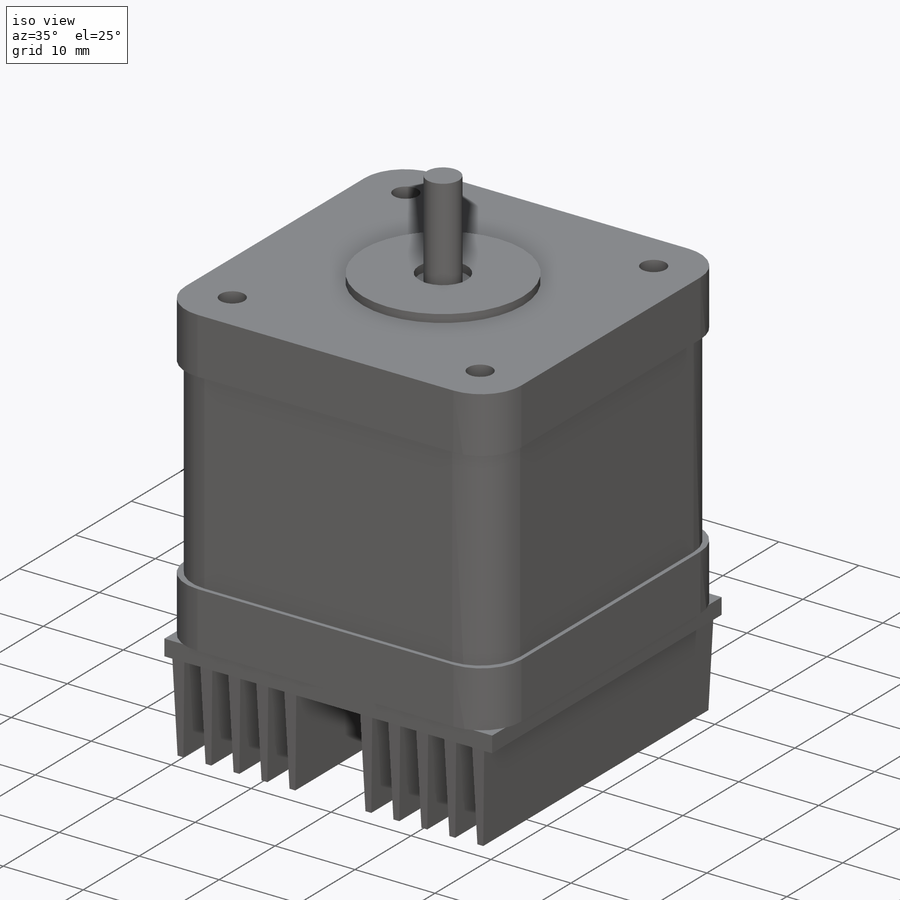
[diagram: iso view]
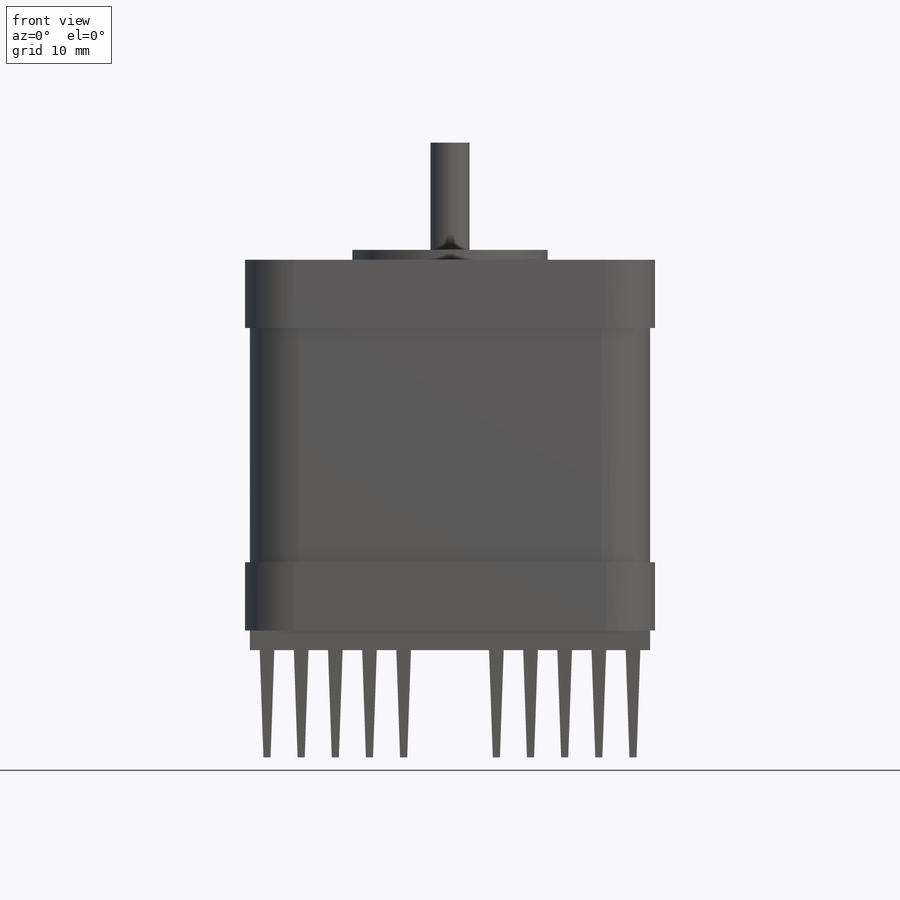
[diagram: front view]
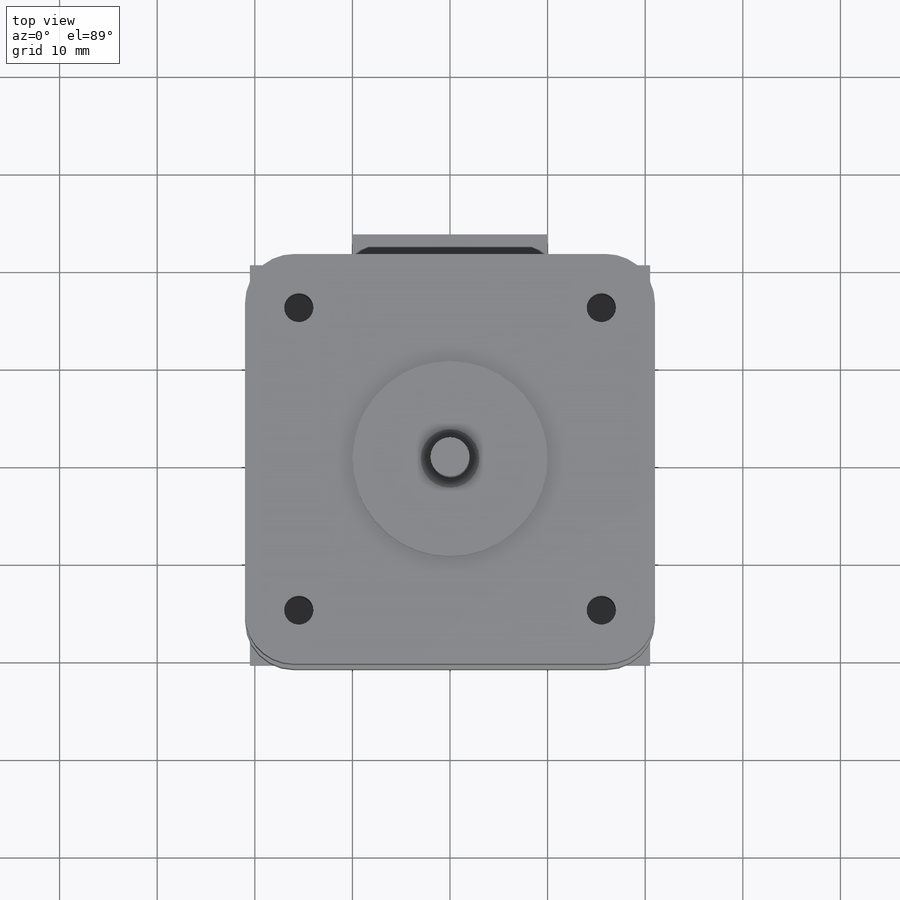
[diagram: top view]
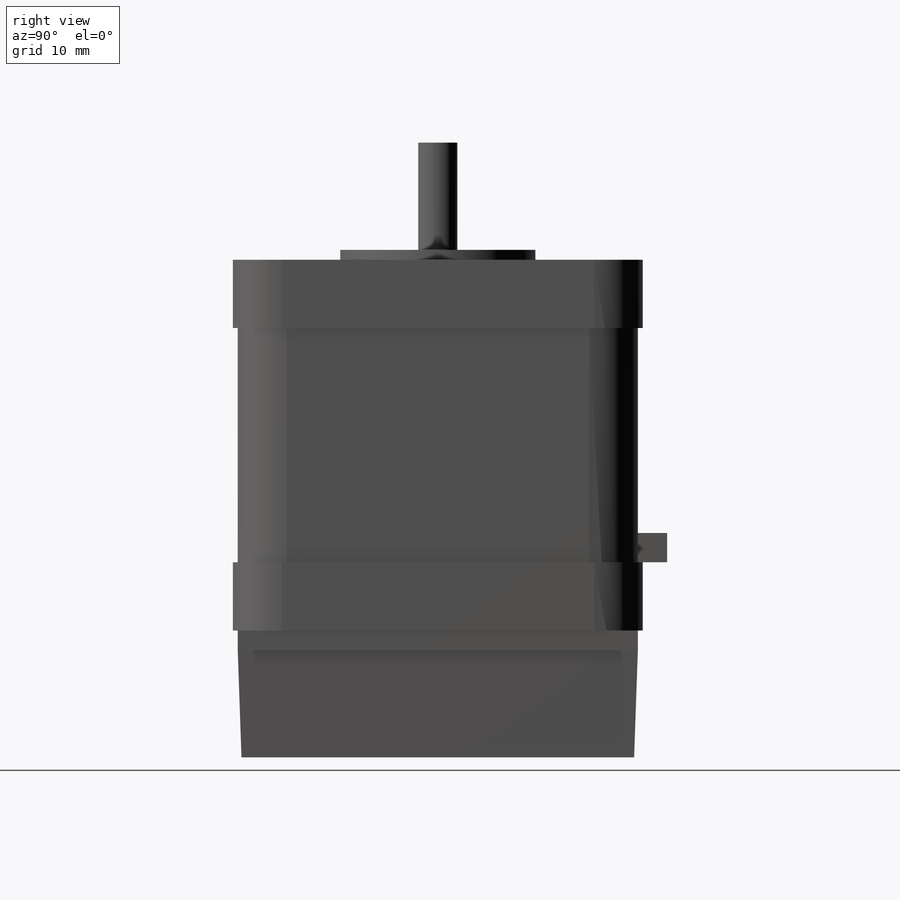
[diagram: right view]
SOLIDWORKS PART (.sldprt)
format: sldprt  version: not decoded by parser v0  size: 304,128 bytes
history: native  units: mm
features: sketch x10, extrude x8, fillet x3, cut_extrude x2, material x1 (+16 scaffold rows collapsed)
feature tree (40):
  scaffold x16  (default folders/planes/origin — collapsed)
  material  "Material <not specified>"
  sketch  "Sketch1"
  extrude  "Extrude1"  Depth=7mm
  fillet  "Fillet1"  Radius=5mm
  sketch  "Sketch2"
  extrude  "Extrude2"  Depth=24mm
  fillet  "Fillet3"  Radius=5mm
  sketch  "Sketch3"
  extrude  "Extrude3"  Depth=7mm
  fillet  "Fillet4"  Radius=5mm
  sketch  "Sketch4"  dims[D1=~12.115548mm]
  extrude  "Extrude4"  Depth=1mm
  sketch  "Sketch5"  dims[D1=~2.605044mm]
  cut_extrude  "Extrude5"  Depth=1mm
  sketch  "Sketch6"  dims[D1=~0.622653mm]
  extrude  "Extrude7"  Depth=12mm
  sketch  "Sketch7"
  extrude  "Extrude8"  Depth=3mm
  sketch  "Sketch8"  dims[D1=~1.236226mm]
  cut_extrude  "Extrude9"  Depth=10mm
  sketch  "Sketch9"
  extrude  "Extrude11"  Depth=2mm
  sketch  "Sketch10"
  extrude  "Extrude12"  Depth=11mm
decode coverage: 17 of 23 modeling features carry decoded parameters
note: ~ marks probable driven/reference dimensions
note: suppression state not decoded; provenance and decode notes live in map.json
